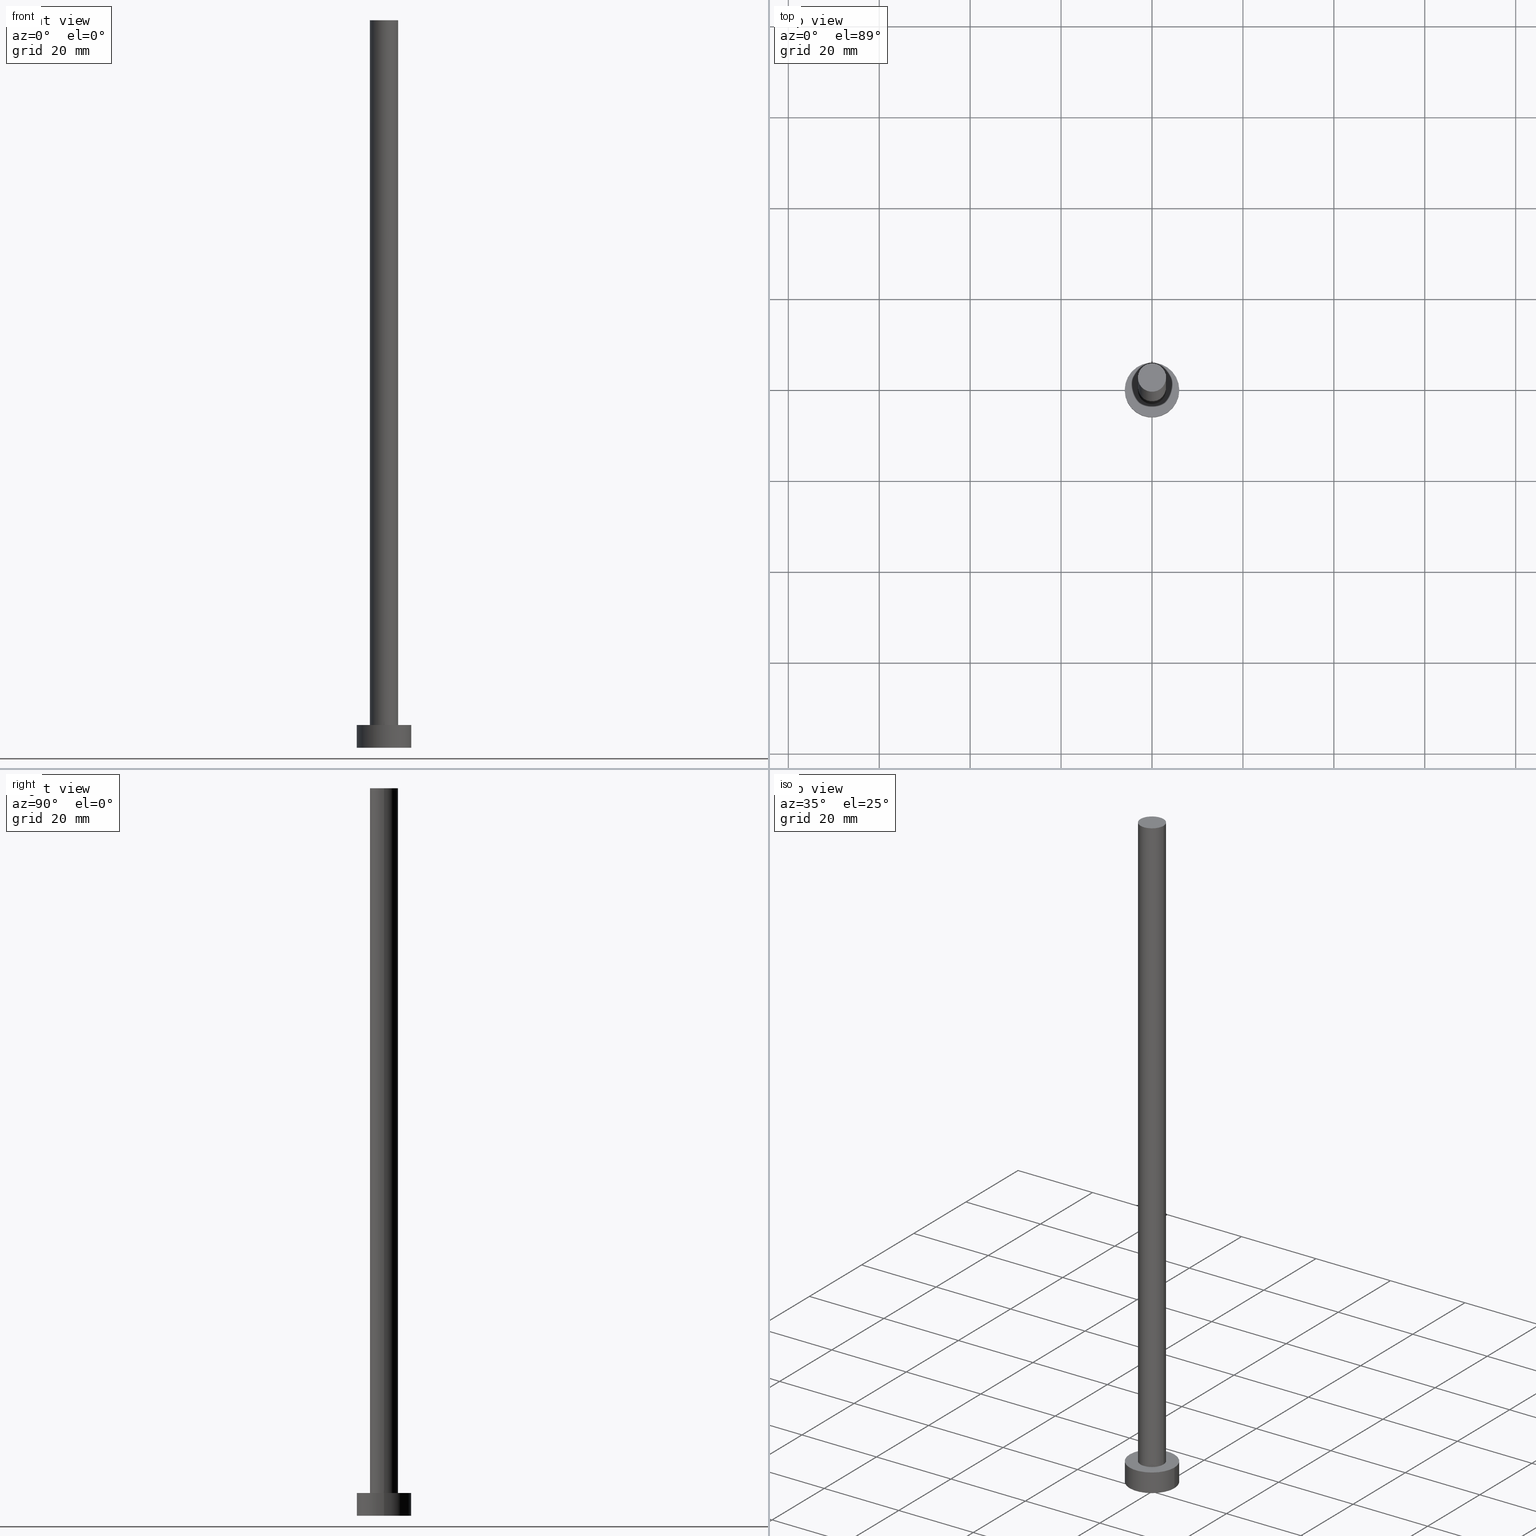
[diagram: canonical four-view strip — front | top / right | iso, engineering-drawing reading convention]
A machine part, canonical four-view strip (front | top / right | iso — engineering-drawing reading convention). The complete STEP part file that produces these views, byte-faithful:
ISO-10303-21;
HEADER;
FILE_DESCRIPTION (( 'STEP AP203' ),
    '1' );
FILE_NAME ('f236.STEP',
    '2023-02-12T12:16:59',
    ( '' ),
    ( '' ),
    'SwSTEP 2.0',
    'SolidWorks 2019',
    '' );
FILE_SCHEMA (( 'CONFIG_CONTROL_DESIGN' ));
ENDSEC;

DATA;
#1 = FACE_OUTER_BOUND ( 'NONE', #68, .T. ) ;
#2 = AXIS2_PLACEMENT_3D ( 'NONE', #52, #50, #204 ) ;
#3 = CARTESIAN_POINT ( 'NONE',  ( -6.000000000000000888, 0.000000000000000000, 5.000000000000000000 ) ) ;
#4 = EDGE_CURVE ( 'NONE', #174, #169, #194, .T. ) ;
#5 = DIRECTION ( 'NONE',  ( 0.000000000000000000, 0.000000000000000000, 1.000000000000000000 ) ) ;
#6 = DIRECTION ( 'NONE',  ( 1.000000000000000000, 0.000000000000000000, 0.000000000000000000 ) ) ;
#7 = AXIS2_PLACEMENT_3D ( 'NONE', #100, #143, #65 ) ;
#8 =( LENGTH_UNIT ( ) NAMED_UNIT ( * ) SI_UNIT ( .MILLI., .METRE. ) );
#9 = COORDINATED_UNIVERSAL_TIME_OFFSET ( 1, 0, .AHEAD. ) ;
#10 = CARTESIAN_POINT ( 'NONE',  ( 0.000000000000000000, 0.000000000000000000, 0.000000000000000000 ) ) ;
#11 = DIRECTION ( 'NONE',  ( 1.000000000000000000, 0.000000000000000000, 0.000000000000000000 ) ) ;
#12 = ORIENTED_EDGE ( 'NONE', *, *, #30, .F. ) ;
#13 = DIRECTION ( 'NONE',  ( -0.000000000000000000, -0.000000000000000000, -1.000000000000000000 ) ) ;
#14 = SECURITY_CLASSIFICATION_LEVEL ( 'unclassified' ) ;
#15 = CARTESIAN_POINT ( 'NONE',  ( 3.100000000000000089, 3.796405077356794918E-16, 160.0000000000000000 ) ) ;
#16 = EDGE_CURVE ( 'NONE', #201, #232, #98, .T. ) ;
#17 = EDGE_LOOP ( 'NONE', ( #238, #125, #25, #85 ) ) ;
#18 = AXIS2_PLACEMENT_3D ( 'NONE', #210, #96, #113 ) ;
#19 = EDGE_CURVE ( 'NONE', #201, #174, #81, .T. ) ;
#20 = ORIENTED_EDGE ( 'NONE', *, *, #240, .F. ) ;
#21 = EDGE_CURVE ( 'NONE', #88, #151, #40, .T. ) ;
#22 = AXIS2_PLACEMENT_3D ( 'NONE', #239, #72, #6 ) ;
#23 = CIRCLE ( 'NONE', #118, 6.000000000000000888 ) ;
#24 = DIRECTION ( 'NONE',  ( 0.000000000000000000, 0.000000000000000000, 1.000000000000000000 ) ) ;
#25 = ORIENTED_EDGE ( 'NONE', *, *, #16, .T. ) ;
#26 = ADVANCED_FACE ( 'NONE', ( #211 ), #115, .T. ) ;
#27 = PERSON_AND_ORGANIZATION ( #254, #195 ) ;
#28 = CIRCLE ( 'NONE', #2, 6.000000000000000888 ) ;
#29 = APPROVAL_ROLE ( '' ) ;
#30 = EDGE_CURVE ( 'NONE', #160, #32, #91, .T. ) ;
#31 = DATE_TIME_ROLE ( 'creation_date' ) ;
#32 = VERTEX_POINT ( 'NONE', #37 ) ;
#33 = APPROVAL ( #189, 'NEUR�EN�' ) ;
#34 = CALENDAR_DATE ( 2023, 12, 2 ) ;
#35 = EDGE_LOOP ( 'NONE', ( #121, #173, #95, #245 ) ) ;
#36 = APPROVAL_ROLE ( '' ) ;
#37 = CARTESIAN_POINT ( 'NONE',  ( 3.100000000000000089, 3.796405077356794918E-16, 5.000000000000000000 ) ) ;
#38 = COORDINATED_UNIVERSAL_TIME_OFFSET ( 1, 0, .AHEAD. ) ;
#39 = DIRECTION ( 'NONE',  ( 0.000000000000000000, 0.000000000000000000, 1.000000000000000000 ) ) ;
#40 = CIRCLE ( 'NONE', #186, 3.100000000000000089 ) ;
#41 = CARTESIAN_POINT ( 'NONE',  ( 0.000000000000000000, 0.000000000000000000, 160.0000000000000000 ) ) ;
#42 = CC_DESIGN_APPROVAL ( #175, ( #199 ) ) ;
#43 = LINE ( 'NONE', #152, #111 ) ;
#44 = CARTESIAN_POINT ( 'NONE',  ( 0.000000000000000000, 0.000000000000000000, 160.0000000000000000 ) ) ;
#45 = LOCAL_TIME ( 13, 16, 59.00000000000000000, #207 ) ;
#46 = PLANE ( 'NONE',  #7 ) ;
#47 = FACE_BOUND ( 'NONE', #243, .T. ) ;
#48 = ADVANCED_FACE ( 'NONE', ( #230 ), #253, .T. ) ;
#49 = ORIENTED_EDGE ( 'NONE', *, *, #179, .F. ) ;
#50 = DIRECTION ( 'NONE',  ( 0.000000000000000000, 0.000000000000000000, 1.000000000000000000 ) ) ;
#51 = APPROVAL_ROLE ( '' ) ;
#52 = CARTESIAN_POINT ( 'NONE',  ( 0.000000000000000000, 0.000000000000000000, 5.000000000000000000 ) ) ;
#53 = CALENDAR_DATE ( 2023, 12, 2 ) ;
#54 = PERSON_AND_ORGANIZATION_ROLE ( 'design_owner' ) ;
#55 = UNCERTAINTY_MEASURE_WITH_UNIT (LENGTH_MEASURE( 1.000000000000000082E-05 ), #8, 'distance_accuracy_value', 'NONE');
#56 = APPROVAL_STATUS ( 'not_yet_approved' ) ;
#57 = DIRECTION ( 'NONE',  ( -1.000000000000000000, 0.000000000000000000, 0.000000000000000000 ) ) ;
#58 = PRODUCT ( 'f236', 'f236', '', ( #166 ) ) ;
#59 = DATE_TIME_ROLE ( 'classification_date' ) ;
#60 = CYLINDRICAL_SURFACE ( 'NONE', #18, 6.000000000000000888 ) ;
#61 = AXIS2_PLACEMENT_3D ( 'NONE', #132, #39, #150 ) ;
#62 = CARTESIAN_POINT ( 'NONE',  ( 0.000000000000000000, 0.000000000000000000, 5.000000000000000000 ) ) ;
#63 = FACE_OUTER_BOUND ( 'NONE', #17, .T. ) ;
#64 = CIRCLE ( 'NONE', #161, 3.100000000000000089 ) ;
#65 = DIRECTION ( 'NONE',  ( 1.000000000000000000, 0.000000000000000000, -0.000000000000000000 ) ) ;
#66 = ORIENTED_EDGE ( 'NONE', *, *, #67, .T. ) ;
#67 = EDGE_CURVE ( 'NONE', #88, #32, #138, .T. ) ;
#68 = EDGE_LOOP ( 'NONE', ( #234, #153 ) ) ;
#69 = CARTESIAN_POINT ( 'NONE',  ( 0.000000000000000000, 0.000000000000000000, 160.0000000000000000 ) ) ;
#70 = ORIENTED_EDGE ( 'NONE', *, *, #218, .T. ) ;
#71 = LOCAL_TIME ( 13, 16, 59.00000000000000000, #104 ) ;
#72 = DIRECTION ( 'NONE',  ( 0.000000000000000000, 0.000000000000000000, 1.000000000000000000 ) ) ;
#73 = AXIS2_PLACEMENT_3D ( 'NONE', #112, #213, #11 ) ;
#74 = EDGE_CURVE ( 'NONE', #232, #169, #77, .T. ) ;
#75 = CARTESIAN_POINT ( 'NONE',  ( 0.000000000000000000, 0.000000000000000000, 5.000000000000000000 ) ) ;
#76 = EDGE_CURVE ( 'NONE', #151, #160, #43, .T. ) ;
#77 = CIRCLE ( 'NONE', #73, 6.000000000000000888 ) ;
#78 = PERSON_AND_ORGANIZATION ( #254, #195 ) ;
#79 = DIRECTION ( 'NONE',  ( -0.000000000000000000, -0.000000000000000000, -1.000000000000000000 ) ) ;
#80 = MANIFOLD_SOLID_BREP ( 'P�idat vysunut�m3', #235 ) ;
#81 = CIRCLE ( 'NONE', #61, 6.000000000000000888 ) ;
#82 = CC_DESIGN_PERSON_AND_ORGANIZATION_ASSIGNMENT ( #225, #54, ( #58 ) ) ;
#83 = FACE_OUTER_BOUND ( 'NONE', #103, .T. ) ;
#84 = CIRCLE ( 'NONE', #183, 3.100000000000000089 ) ;
#85 = ORIENTED_EDGE ( 'NONE', *, *, #74, .T. ) ;
#86 = PERSON_AND_ORGANIZATION ( #254, #195 ) ;
#87 = PERSON_AND_ORGANIZATION ( #254, #195 ) ;
#88 = VERTEX_POINT ( 'NONE', #197 ) ;
#89 = PERSON_AND_ORGANIZATION_ROLE ( 'creator' ) ;
#90 = EDGE_LOOP ( 'NONE', ( #203, #66, #251, #133 ) ) ;
#91 = CIRCLE ( 'NONE', #252, 3.100000000000000089 ) ;
#92 = APPROVAL_PERSON_ORGANIZATION ( #78, #175, #36 ) ;
#93 = CALENDAR_DATE ( 2023, 12, 2 ) ;
#94 = DIRECTION ( 'NONE',  ( -0.000000000000000000, -0.000000000000000000, -1.000000000000000000 ) ) ;
#95 = ORIENTED_EDGE ( 'NONE', *, *, #76, .T. ) ;
#96 = DIRECTION ( 'NONE',  ( -0.000000000000000000, -0.000000000000000000, -1.000000000000000000 ) ) ;
#97 = DIRECTION ( 'NONE',  ( 0.000000000000000000, 0.000000000000000000, 1.000000000000000000 ) ) ;
#98 = LINE ( 'NONE', #214, #192 ) ;
#99 = CARTESIAN_POINT ( 'NONE',  ( 6.000000000000000888, 7.347880794884120722E-16, 5.000000000000000000 ) ) ;
#100 = CARTESIAN_POINT ( 'NONE',  ( 0.000000000000000000, 0.000000000000000000, 160.0000000000000000 ) ) ;
#101 = CARTESIAN_POINT ( 'NONE',  ( -3.100000000000000089, 0.000000000000000000, 5.000000000000000000 ) ) ;
#102 = APPLICATION_CONTEXT ( 'configuration controlled 3d designs of mechanical parts and assemblies' ) ;
#103 = EDGE_LOOP ( 'NONE', ( #170, #167 ) ) ;
#104 = COORDINATED_UNIVERSAL_TIME_OFFSET ( 1, 0, .AHEAD. ) ;
#105 = AXIS2_PLACEMENT_3D ( 'NONE', #217, #24, #184 ) ;
#106 = CARTESIAN_POINT ( 'NONE',  ( -6.000000000000000888, 0.000000000000000000, 0.000000000000000000 ) ) ;
#107 = ADVANCED_FACE ( 'NONE', ( #63 ), #172, .T. ) ;
#108 = PRODUCT_DEFINITION ( 'NEZN�M�', '', #222, #126 ) ;
#109 = ORIENTED_EDGE ( 'NONE', *, *, #16, .F. ) ;
#110 = DIRECTION ( 'NONE',  ( 0.000000000000000000, 0.000000000000000000, 1.000000000000000000 ) ) ;
#111 = VECTOR ( 'NONE', #94, 1000.000000000000000 ) ;
#112 = CARTESIAN_POINT ( 'NONE',  ( 0.000000000000000000, 0.000000000000000000, 0.000000000000000000 ) ) ;
#113 = DIRECTION ( 'NONE',  ( -1.000000000000000000, 0.000000000000000000, 0.000000000000000000 ) ) ;
#114 = CC_DESIGN_APPROVAL ( #33, ( #222 ) ) ;
#115 = CYLINDRICAL_SURFACE ( 'NONE', #156, 3.100000000000000089 ) ;
#116 = CC_DESIGN_DATE_AND_TIME_ASSIGNMENT ( #117, #59, ( #199 ) ) ;
#117 = DATE_AND_TIME ( #191, #219 ) ;
#118 = AXIS2_PLACEMENT_3D ( 'NONE', #10, #163, #220 ) ;
#119 =( NAMED_UNIT ( * ) PLANE_ANGLE_UNIT ( ) SI_UNIT ( $, .RADIAN. ) );
#120 = APPROVAL_DATE_TIME ( #185, #33 ) ;
#121 = ORIENTED_EDGE ( 'NONE', *, *, #67, .F. ) ;
#122 = APPLICATION_CONTEXT ( 'configuration controlled 3d designs of mechanical parts and assemblies' ) ;
#123 = PLANE ( 'NONE',  #247 ) ;
#124 = APPROVAL_PERSON_ORGANIZATION ( #164, #33, #51 ) ;
#125 = ORIENTED_EDGE ( 'NONE', *, *, #19, .F. ) ;
#126 = DESIGN_CONTEXT ( 'detailed design', #102, 'design' ) ;
#127 = DATE_AND_TIME ( #34, #45 ) ;
#128 = ADVANCED_FACE ( 'NONE', ( #246 ), #60, .T. ) ;
#129 = APPLICATION_PROTOCOL_DEFINITION ( 'international standard', 'config_control_design', 1994, #102 ) ;
#130 = APPROVAL ( #226, 'NEUR�EN�' ) ;
#131 = CARTESIAN_POINT ( 'NONE',  ( 0.000000000000000000, 0.000000000000000000, 160.0000000000000000 ) ) ;
#132 = CARTESIAN_POINT ( 'NONE',  ( 0.000000000000000000, 0.000000000000000000, 5.000000000000000000 ) ) ;
#133 = ORIENTED_EDGE ( 'NONE', *, *, #76, .F. ) ;
#134 = DIRECTION ( 'NONE',  ( 1.000000000000000000, 0.000000000000000000, 0.000000000000000000 ) ) ;
#135 = VECTOR ( 'NONE', #13, 1000.000000000000000 ) ;
#136 = ORIENTED_EDGE ( 'NONE', *, *, #4, .T. ) ;
#137 = CC_DESIGN_PERSON_AND_ORGANIZATION_ASSIGNMENT ( #145, #162, ( #222 ) ) ;
#138 = LINE ( 'NONE', #15, #148 ) ;
#139 = PRODUCT_RELATED_PRODUCT_CATEGORY ( 'detail', '', ( #58 ) ) ;
#140 = DIRECTION ( 'NONE',  ( -1.000000000000000000, 0.000000000000000000, 0.000000000000000000 ) ) ;
#141 = PLANE ( 'NONE',  #105 ) ;
#142 = CARTESIAN_POINT ( 'NONE',  ( 6.000000000000000888, 7.347880794884120722E-16, 0.000000000000000000 ) ) ;
#143 = DIRECTION ( 'NONE',  ( 0.000000000000000000, 0.000000000000000000, 1.000000000000000000 ) ) ;
#144 = CARTESIAN_POINT ( 'NONE',  ( 0.000000000000000000, 0.000000000000000000, 5.000000000000000000 ) ) ;
#145 = PERSON_AND_ORGANIZATION ( #254, #195 ) ;
#146 = DIRECTION ( 'NONE',  ( 1.000000000000000000, 0.000000000000000000, -0.000000000000000000 ) ) ;
#147 = LOCAL_TIME ( 13, 16, 59.00000000000000000, #38 ) ;
#148 = VECTOR ( 'NONE', #250, 1000.000000000000000 ) ;
#149 = LOCAL_TIME ( 13, 16, 59.00000000000000000, #9 ) ;
#150 = DIRECTION ( 'NONE',  ( 1.000000000000000000, 0.000000000000000000, 0.000000000000000000 ) ) ;
#151 = VERTEX_POINT ( 'NONE', #255 ) ;
#152 = CARTESIAN_POINT ( 'NONE',  ( -3.100000000000000089, 0.000000000000000000, 160.0000000000000000 ) ) ;
#153 = ORIENTED_EDGE ( 'NONE', *, *, #218, .F. ) ;
#154 = PERSON_AND_ORGANIZATION_ROLE ( 'classification_officer' ) ;
#155 = DIRECTION ( 'NONE',  ( -0.000000000000000000, -0.000000000000000000, -1.000000000000000000 ) ) ;
#156 = AXIS2_PLACEMENT_3D ( 'NONE', #44, #181, #180 ) ;
#157 = CC_DESIGN_SECURITY_CLASSIFICATION ( #199, ( #222 ) ) ;
#158 = SHAPE_DEFINITION_REPRESENTATION ( #212, #208 ) ;
#159 = CC_DESIGN_PERSON_AND_ORGANIZATION_ASSIGNMENT ( #171, #154, ( #199 ) ) ;
#160 = VERTEX_POINT ( 'NONE', #101 ) ;
#161 = AXIS2_PLACEMENT_3D ( 'NONE', #215, #5, #233 ) ;
#162 = PERSON_AND_ORGANIZATION_ROLE ( 'design_supplier' ) ;
#163 = DIRECTION ( 'NONE',  ( 0.000000000000000000, 0.000000000000000000, 1.000000000000000000 ) ) ;
#164 = PERSON_AND_ORGANIZATION ( #254, #195 ) ;
#165 = FACE_OUTER_BOUND ( 'NONE', #205, .T. ) ;
#166 = MECHANICAL_CONTEXT ( 'NONE', #122, 'mechanical' ) ;
#167 = ORIENTED_EDGE ( 'NONE', *, *, #21, .T. ) ;
#168 = CC_DESIGN_DATE_AND_TIME_ASSIGNMENT ( #127, #31, ( #108 ) ) ;
#169 = VERTEX_POINT ( 'NONE', #142 ) ;
#170 = ORIENTED_EDGE ( 'NONE', *, *, #237, .T. ) ;
#171 = PERSON_AND_ORGANIZATION ( #254, #195 ) ;
#172 = CYLINDRICAL_SURFACE ( 'NONE', #206, 6.000000000000000888 ) ;
#173 = ORIENTED_EDGE ( 'NONE', *, *, #237, .F. ) ;
#174 = VERTEX_POINT ( 'NONE', #99 ) ;
#175 = APPROVAL ( #56, 'NEUR�EN�' ) ;
#176 = CALENDAR_DATE ( 2023, 12, 2 ) ;
#177 = CARTESIAN_POINT ( 'NONE',  ( 6.000000000000000888, 7.347880794884120722E-16, 5.000000000000000000 ) ) ;
#178 = ORIENTED_EDGE ( 'NONE', *, *, #240, .T. ) ;
#179 = EDGE_CURVE ( 'NONE', #32, #160, #64, .T. ) ;
#180 = DIRECTION ( 'NONE',  ( -1.000000000000000000, 0.000000000000000000, 0.000000000000000000 ) ) ;
#181 = DIRECTION ( 'NONE',  ( -0.000000000000000000, -0.000000000000000000, -1.000000000000000000 ) ) ;
#182 = ADVANCED_FACE ( 'NONE', ( #83 ), #46, .T. ) ;
#183 = AXIS2_PLACEMENT_3D ( 'NONE', #69, #110, #241 ) ;
#184 = DIRECTION ( 'NONE',  ( 1.000000000000000000, 0.000000000000000000, -0.000000000000000000 ) ) ;
#185 = DATE_AND_TIME ( #93, #71 ) ;
#186 = AXIS2_PLACEMENT_3D ( 'NONE', #131, #97, #134 ) ;
#187 = PERSON_AND_ORGANIZATION_ROLE ( 'creator' ) ;
#188 = AXIS2_PLACEMENT_3D ( 'NONE', #41, #155, #57 ) ;
#189 = APPROVAL_STATUS ( 'not_yet_approved' ) ;
#190 = DIRECTION ( 'NONE',  ( 0.000000000000000000, 0.000000000000000000, 1.000000000000000000 ) ) ;
#191 = CALENDAR_DATE ( 2023, 12, 2 ) ;
#192 = VECTOR ( 'NONE', #79, 1000.000000000000000 ) ;
#193 = APPROVAL_DATE_TIME ( #248, #175 ) ;
#194 = LINE ( 'NONE', #177, #135 ) ;
#195 = ORGANIZATION ( 'NEUR�EN�', 'NEUR�EN�', '' ) ;
#196 = DIRECTION ( 'NONE',  ( 0.000000000000000000, 0.000000000000000000, 1.000000000000000000 ) ) ;
#197 = CARTESIAN_POINT ( 'NONE',  ( 3.100000000000000089, 3.796405077356794918E-16, 160.0000000000000000 ) ) ;
#198 = ADVANCED_FACE ( 'NONE', ( #1 ), #141, .F. ) ;
#199 = SECURITY_CLASSIFICATION ( '', '', #14 ) ;
#200 =( NAMED_UNIT ( * ) SI_UNIT ( $, .STERADIAN. ) SOLID_ANGLE_UNIT ( ) );
#201 = VERTEX_POINT ( 'NONE', #3 ) ;
#202 = APPROVAL_PERSON_ORGANIZATION ( #86, #130, #29 ) ;
#203 = ORIENTED_EDGE ( 'NONE', *, *, #21, .F. ) ;
#204 = DIRECTION ( 'NONE',  ( 1.000000000000000000, 0.000000000000000000, 0.000000000000000000 ) ) ;
#205 = EDGE_LOOP ( 'NONE', ( #249, #178 ) ) ;
#206 = AXIS2_PLACEMENT_3D ( 'NONE', #75, #231, #140 ) ;
#207 = COORDINATED_UNIVERSAL_TIME_OFFSET ( 1, 0, .AHEAD. ) ;
#208 = ADVANCED_BREP_SHAPE_REPRESENTATION ( 'f236', ( #80, #22 ), #228 ) ;
#209 = DIRECTION ( 'NONE',  ( 1.000000000000000000, 0.000000000000000000, 0.000000000000000000 ) ) ;
#210 = CARTESIAN_POINT ( 'NONE',  ( 0.000000000000000000, 0.000000000000000000, 5.000000000000000000 ) ) ;
#211 = FACE_OUTER_BOUND ( 'NONE', #35, .T. ) ;
#212 = PRODUCT_DEFINITION_SHAPE ( 'NONE', 'NONE',  #108 ) ;
#213 = DIRECTION ( 'NONE',  ( 0.000000000000000000, 0.000000000000000000, 1.000000000000000000 ) ) ;
#214 = CARTESIAN_POINT ( 'NONE',  ( -6.000000000000000888, 0.000000000000000000, 5.000000000000000000 ) ) ;
#215 = CARTESIAN_POINT ( 'NONE',  ( 0.000000000000000000, 0.000000000000000000, 5.000000000000000000 ) ) ;
#216 = ADVANCED_FACE ( 'NONE', ( #47, #165 ), #123, .T. ) ;
#217 = CARTESIAN_POINT ( 'NONE',  ( 0.000000000000000000, 0.000000000000000000, 0.000000000000000000 ) ) ;
#218 = EDGE_CURVE ( 'NONE', #169, #232, #23, .T. ) ;
#219 = LOCAL_TIME ( 13, 16, 59.00000000000000000, #227 ) ;
#220 = DIRECTION ( 'NONE',  ( 1.000000000000000000, 0.000000000000000000, 0.000000000000000000 ) ) ;
#221 = DATE_AND_TIME ( #53, #149 ) ;
#222 = PRODUCT_DEFINITION_FORMATION_WITH_SPECIFIED_SOURCE ( 'LIBOVOLN�', '', #58, .NOT_KNOWN. ) ;
#223 = APPLICATION_PROTOCOL_DEFINITION ( 'international standard', 'config_control_design', 1994, #122 ) ;
#224 = CC_DESIGN_PERSON_AND_ORGANIZATION_ASSIGNMENT ( #87, #89, ( #108 ) ) ;
#225 = PERSON_AND_ORGANIZATION ( #254, #195 ) ;
#226 = APPROVAL_STATUS ( 'not_yet_approved' ) ;
#227 = COORDINATED_UNIVERSAL_TIME_OFFSET ( 1, 0, .AHEAD. ) ;
#228 =( GEOMETRIC_REPRESENTATION_CONTEXT ( 3 ) GLOBAL_UNCERTAINTY_ASSIGNED_CONTEXT ( ( #55 ) ) GLOBAL_UNIT_ASSIGNED_CONTEXT ( ( #8, #119, #200 ) ) REPRESENTATION_CONTEXT ( 'NONE', 'WORKASPACE' ) );
#229 = CC_DESIGN_PERSON_AND_ORGANIZATION_ASSIGNMENT ( #27, #187, ( #222 ) ) ;
#230 = FACE_OUTER_BOUND ( 'NONE', #90, .T. ) ;
#231 = DIRECTION ( 'NONE',  ( -0.000000000000000000, -0.000000000000000000, -1.000000000000000000 ) ) ;
#232 = VERTEX_POINT ( 'NONE', #106 ) ;
#233 = DIRECTION ( 'NONE',  ( 1.000000000000000000, 0.000000000000000000, 0.000000000000000000 ) ) ;
#234 = ORIENTED_EDGE ( 'NONE', *, *, #74, .F. ) ;
#235 = CLOSED_SHELL ( 'NONE', ( #48, #128, #107, #216, #198, #26, #182 ) ) ;
#236 = CC_DESIGN_APPROVAL ( #130, ( #108 ) ) ;
#237 = EDGE_CURVE ( 'NONE', #151, #88, #84, .T. ) ;
#238 = ORIENTED_EDGE ( 'NONE', *, *, #4, .F. ) ;
#239 = CARTESIAN_POINT ( 'NONE',  ( 0.000000000000000000, 0.000000000000000000, 0.000000000000000000 ) ) ;
#240 = EDGE_CURVE ( 'NONE', #174, #201, #28, .T. ) ;
#241 = DIRECTION ( 'NONE',  ( 1.000000000000000000, 0.000000000000000000, 0.000000000000000000 ) ) ;
#242 = APPROVAL_DATE_TIME ( #221, #130 ) ;
#243 = EDGE_LOOP ( 'NONE', ( #12, #49 ) ) ;
#244 = EDGE_LOOP ( 'NONE', ( #20, #136, #70, #109 ) ) ;
#245 = ORIENTED_EDGE ( 'NONE', *, *, #30, .T. ) ;
#246 = FACE_OUTER_BOUND ( 'NONE', #244, .T. ) ;
#247 = AXIS2_PLACEMENT_3D ( 'NONE', #144, #190, #146 ) ;
#248 = DATE_AND_TIME ( #176, #147 ) ;
#249 = ORIENTED_EDGE ( 'NONE', *, *, #19, .T. ) ;
#250 = DIRECTION ( 'NONE',  ( -0.000000000000000000, -0.000000000000000000, -1.000000000000000000 ) ) ;
#251 = ORIENTED_EDGE ( 'NONE', *, *, #179, .T. ) ;
#252 = AXIS2_PLACEMENT_3D ( 'NONE', #62, #196, #209 ) ;
#253 = CYLINDRICAL_SURFACE ( 'NONE', #188, 3.100000000000000089 ) ;
#254 = PERSON ( 'NEUR�EN�', 'NEUR�EN�', 'NEUR�EN�', ('NEUR�EN�'), ('NEUR�EN�'), ('NEUR�EN�') ) ;
#255 = CARTESIAN_POINT ( 'NONE',  ( -3.100000000000000089, 0.000000000000000000, 160.0000000000000000 ) ) ;
ENDSEC;
END-ISO-10303-21;
